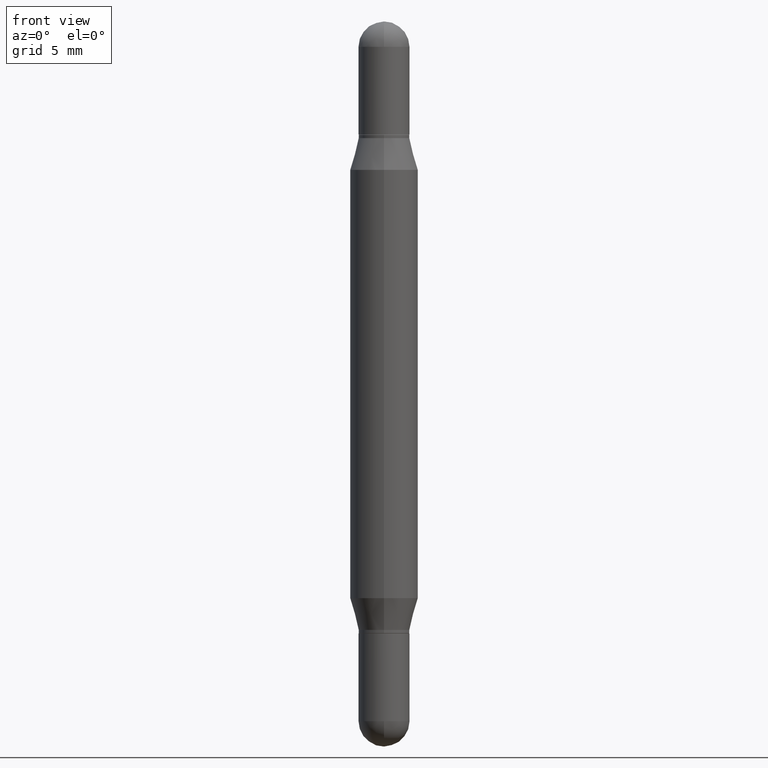
[diagram: clean part render]
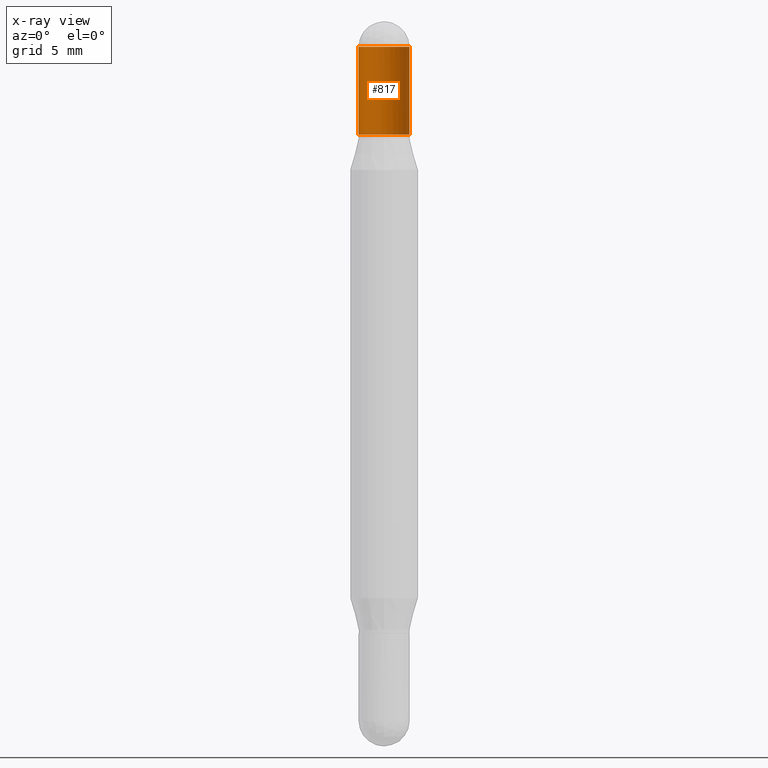
[diagram: x-ray — body ghosted, one internal face saturated and labeled with its STEP entity id]
A machine part, front view, then the same camera in x-ray: the body is ghosted and one INTERNAL B-rep face — a face not visible from any outside direction — is saturated and labeled: STEP entity #817.
In plain terms, the highlighted cylindrical surface (edge-blend (fillet) strip) has radius 1.7856 mm, axis along (-0, -0, -1).
Its self-contained STEP definition (entity closure, byte-faithful):
#3 = CARTESIAN_POINT ( 'NONE',  ( -0.07030000000000004301, -6.488802796577634580E-15, -2.000000000000000000 ) ) ;
#23 = DIRECTION ( 'NONE',  ( 1.000000000000000000, -6.982962677686268288E-15, 0.000000000000000000 ) ) ;
#76 = CARTESIAN_POINT ( 'NONE',  ( -0.07030000000000004301, -1.947021679847895810E-16, -0.07030000000000007077 ) ) ;
#96 = DIRECTION ( 'NONE',  ( 2.445468806185136597E-29, 3.479614466977828254E-15, 1.000000000000000000 ) ) ;
#101 = VECTOR ( 'NONE', #267, 39.37007874015748143 ) ;
#112 = VERTEX_POINT ( 'NONE', #480 ) ;
#118 = DIRECTION ( 'NONE',  ( 2.445468806185136597E-29, 3.479614466977828254E-15, 1.000000000000000000 ) ) ;
#155 = CARTESIAN_POINT ( 'NONE',  ( 0.07030000000000004301, -1.167897453469473342E-15, -0.07030000000000007077 ) ) ;
#199 = CARTESIAN_POINT ( 'NONE',  ( -0.07030000000000007077, -1.947021679847897782E-16, -0.3119999999999998330 ) ) ;
#247 = DIRECTION ( 'NONE',  ( 2.445468806185136597E-29, 3.479614466977828254E-15, 1.000000000000000000 ) ) ;
#254 = EDGE_LOOP ( 'NONE', ( #896, #408, #491, #552, #776 ) ) ;
#265 = EDGE_CURVE ( 'NONE', #308, #112, #431, .T. ) ;
#267 = DIRECTION ( 'NONE',  ( -2.445468806185136877E-29, -3.479614466977828648E-15, -1.000000000000000000 ) ) ;
#283 = CARTESIAN_POINT ( 'NONE',  ( 0.000000000000000000, -6.971095805820973837E-15, -2.000000000000000000 ) ) ;
#308 = VERTEX_POINT ( 'NONE', #155 ) ;
#317 = EDGE_CURVE ( 'NONE', #995, #692, #666, .T. ) ;
#343 = CARTESIAN_POINT ( 'NONE',  ( 0.07030000000000004301, -7.461998082062317995E-15, -2.000000000000000000 ) ) ;
#373 = CARTESIAN_POINT ( 'NONE',  ( 4.127951344840510809E-29, -1.097506585562398841E-15, -0.3119999999999998330 ) ) ;
#392 = CARTESIAN_POINT ( 'NONE',  ( 4.909022762413921804E-16, 0.07029999999999980709, -0.07030000000000032057 ) ) ;
#408 = ORIENTED_EDGE ( 'NONE', *, *, #317, .F. ) ;
#414 = AXIS2_PLACEMENT_3D ( 'NONE', #789, #96, #860 ) ;
#431 = LINE ( 'NONE', #343, #101 ) ;
#480 = CARTESIAN_POINT ( 'NONE',  ( 0.07030000000000005689, -1.588408861803743789E-15, -0.3119999999999998330 ) ) ;
#491 = ORIENTED_EDGE ( 'NONE', *, *, #1022, .F. ) ;
#552 = ORIENTED_EDGE ( 'NONE', *, *, #265, .T. ) ;
#562 = AXIS2_PLACEMENT_3D ( 'NONE', #373, #118, #720 ) ;
#638 = DIRECTION ( 'NONE',  ( -2.445468806185136597E-29, -3.479614466977828254E-15, -1.000000000000000000 ) ) ;
#666 = CIRCLE ( 'NONE', #414, 0.07030000000000004301 ) ;
#692 = VERTEX_POINT ( 'NONE', #76 ) ;
#699 = EDGE_CURVE ( 'NONE', #692, #830, #791, .T. ) ;
#720 = DIRECTION ( 'NONE',  ( 1.000000000000000000, -6.982962677686266711E-15, 0.000000000000000000 ) ) ;
#724 = CARTESIAN_POINT ( 'NONE',  ( 4.719021155295457704E-29, -2.564837688938590811E-16, -0.07030000000000007077 ) ) ;
#776 = ORIENTED_EDGE ( 'NONE', *, *, #926, .T. ) ;
#789 = CARTESIAN_POINT ( 'NONE',  ( 4.719021155295457704E-29, -2.564837688938590811E-16, -0.07030000000000007077 ) ) ;
#791 = LINE ( 'NONE', #3, #1114 ) ;
#796 = DIRECTION ( 'NONE',  ( -2.445468806185136877E-29, -3.479614466977828648E-15, -1.000000000000000000 ) ) ;
#813 = CYLINDRICAL_SURFACE ( 'NONE', #1003, 0.07030000000000004301 ) ;
#817 = ADVANCED_FACE ( 'NONE', ( #1069 ), #813, .T. ) ;
#830 = VERTEX_POINT ( 'NONE', #199 ) ;
#860 = DIRECTION ( 'NONE',  ( 1.000000000000000000, -6.982962677686268288E-15, 0.000000000000000000 ) ) ;
#895 = AXIS2_PLACEMENT_3D ( 'NONE', #724, #247, #23 ) ;
#896 = ORIENTED_EDGE ( 'NONE', *, *, #699, .F. ) ;
#926 = EDGE_CURVE ( 'NONE', #112, #830, #998, .T. ) ;
#984 = DIRECTION ( 'NONE',  ( 1.000000000000000000, -6.982962677686261189E-15, 0.000000000000000000 ) ) ;
#995 = VERTEX_POINT ( 'NONE', #392 ) ;
#998 = CIRCLE ( 'NONE', #562, 0.07030000000000005689 ) ;
#1003 = AXIS2_PLACEMENT_3D ( 'NONE', #283, #638, #984 ) ;
#1016 = CIRCLE ( 'NONE', #895, 0.07030000000000004301 ) ;
#1022 = EDGE_CURVE ( 'NONE', #308, #995, #1016, .T. ) ;
#1069 = FACE_OUTER_BOUND ( 'NONE', #254, .T. ) ;
#1114 = VECTOR ( 'NONE', #796, 39.37007874015748143 ) ;